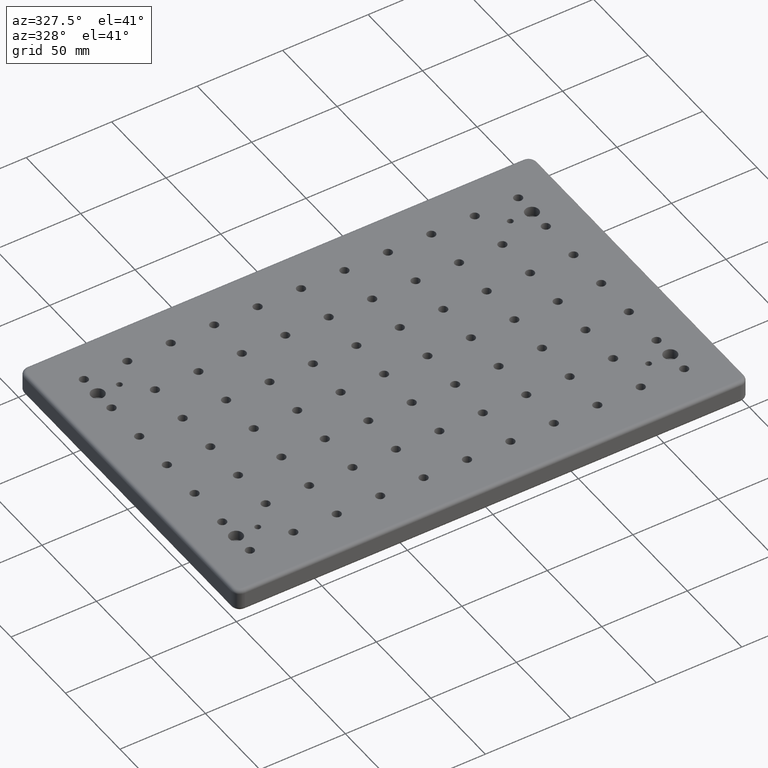
[diagram: clean part render]
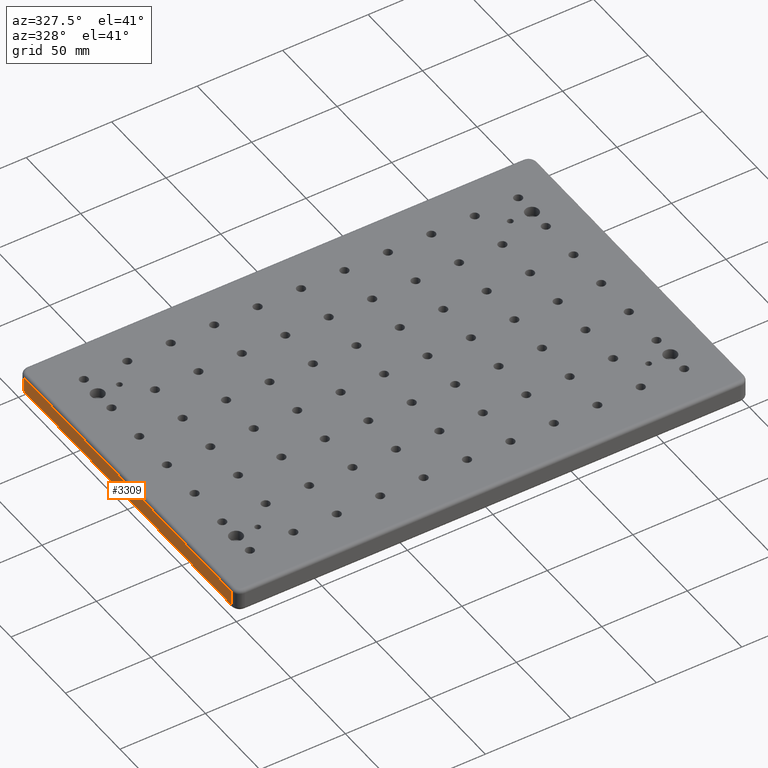
[diagram: same view with one face highlighted and labeled with its STEP entity id]
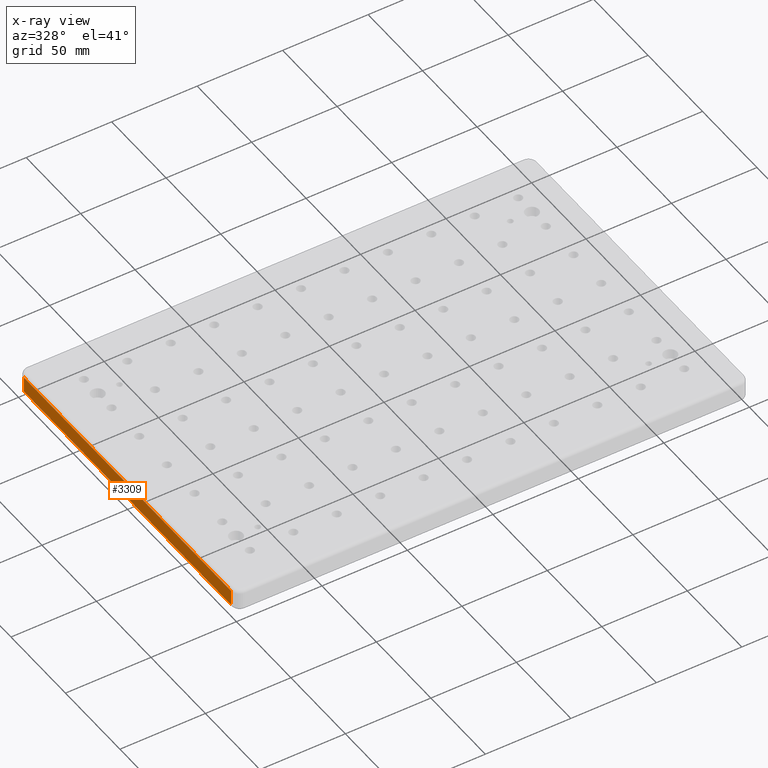
[diagram: x-ray of the same camera — body ghosted, the highlighted face saturated]
A machine part, auxiliary view. The second image highlights one B-rep face of the part: STEP entity #3309.
The next image is the same camera in x-ray: the body ghosted, the highlighted face saturated — about 0% of this face is hidden behind the body in this view.
In plain terms, the highlighted planar face has unit normal (-1, 0, 0).
Its self-contained STEP definition (entity closure, byte-faithful):
#168 = ORIENTED_EDGE ( 'NONE', *, *, #5066, .T. ) ;
#407 = VECTOR ( 'NONE', #1902, 1000.000000000000000 ) ;
#482 = CARTESIAN_POINT ( 'NONE',  ( -149.9999999999999700, 95.00000000000011400, -2.000000000000000000 ) ) ;
#903 = CARTESIAN_POINT ( 'NONE',  ( -149.9999999999999700, 95.00000000000011400, -2.000000000000001800 ) ) ;
#966 = VERTEX_POINT ( 'NONE', #2159 ) ;
#973 = DIRECTION ( 'NONE',  ( -1.000000000000000000, 0.0000000000000000000, 0.0000000000000000000 ) ) ;
#1066 = ORIENTED_EDGE ( 'NONE', *, *, #5155, .T. ) ;
#1338 = ORIENTED_EDGE ( 'NONE', *, *, #3531, .F. ) ;
#1515 = CARTESIAN_POINT ( 'NONE',  ( -149.9999999999999700, -95.00000000000011400, -13.00000000000000000 ) ) ;
#1748 = VERTEX_POINT ( 'NONE', #4083 ) ;
#1902 = DIRECTION ( 'NONE',  ( 0.0000000000000000000, -1.000000000000000000, 0.0000000000000000000 ) ) ;
#2159 = CARTESIAN_POINT ( 'NONE',  ( -149.9999999999999700, -95.00000000000011400, -11.00000000000000000 ) ) ;
#2172 = LINE ( 'NONE', #6372, #3399 ) ;
#2280 = VECTOR ( 'NONE', #3214, 1000.000000000000000 ) ;
#2296 = VERTEX_POINT ( 'NONE', #903 ) ;
#2474 = VECTOR ( 'NONE', #5054, 1000.000000000000000 ) ;
#3214 = DIRECTION ( 'NONE',  ( 0.0000000000000000000, 0.0000000000000000000, 1.000000000000000000 ) ) ;
#3309 = ADVANCED_FACE ( 'NONE', ( #6802 ), #4434, .T. ) ;
#3344 = ORIENTED_EDGE ( 'NONE', *, *, #4466, .T. ) ;
#3399 = VECTOR ( 'NONE', #3423, 1000.000000000000000 ) ;
#3423 = DIRECTION ( 'NONE',  ( 0.0000000000000000000, 0.0000000000000000000, 1.000000000000000000 ) ) ;
#3531 = EDGE_CURVE ( 'NONE', #1748, #2296, #2172, .T. ) ;
#3857 = AXIS2_PLACEMENT_3D ( 'NONE', #6620, #973, #5531 ) ;
#4083 = CARTESIAN_POINT ( 'NONE',  ( -149.9999999999999700, 95.00000000000011400, -11.00000000000000000 ) ) ;
#4434 = PLANE ( 'NONE',  #3857 ) ;
#4466 = EDGE_CURVE ( 'NONE', #5230, #2296, #6567, .T. ) ;
#4741 = EDGE_LOOP ( 'NONE', ( #1338, #168, #1066, #3344 ) ) ;
#5035 = LINE ( 'NONE', #5304, #407 ) ;
#5054 = DIRECTION ( 'NONE',  ( -0.0000000000000000000, 1.000000000000000000, -0.0000000000000000000 ) ) ;
#5066 = EDGE_CURVE ( 'NONE', #1748, #966, #5035, .T. ) ;
#5155 = EDGE_CURVE ( 'NONE', #966, #5230, #5592, .T. ) ;
#5230 = VERTEX_POINT ( 'NONE', #7187 ) ;
#5304 = CARTESIAN_POINT ( 'NONE',  ( -149.9999999999999700, -95.00000000000011400, -11.00000000000000000 ) ) ;
#5531 = DIRECTION ( 'NONE',  ( 0.0000000000000000000, 0.0000000000000000000, 1.000000000000000000 ) ) ;
#5592 = LINE ( 'NONE', #1515, #2280 ) ;
#6372 = CARTESIAN_POINT ( 'NONE',  ( -149.9999999999999700, 95.00000000000011400, -13.00000000000000000 ) ) ;
#6567 = LINE ( 'NONE', #482, #2474 ) ;
#6620 = CARTESIAN_POINT ( 'NONE',  ( -149.9999999999999700, -95.00000000000011400, -13.00000000000000000 ) ) ;
#6802 = FACE_OUTER_BOUND ( 'NONE', #4741, .T. ) ;
#7187 = CARTESIAN_POINT ( 'NONE',  ( -149.9999999999999700, -95.00000000000011400, -2.000000000000003600 ) ) ;